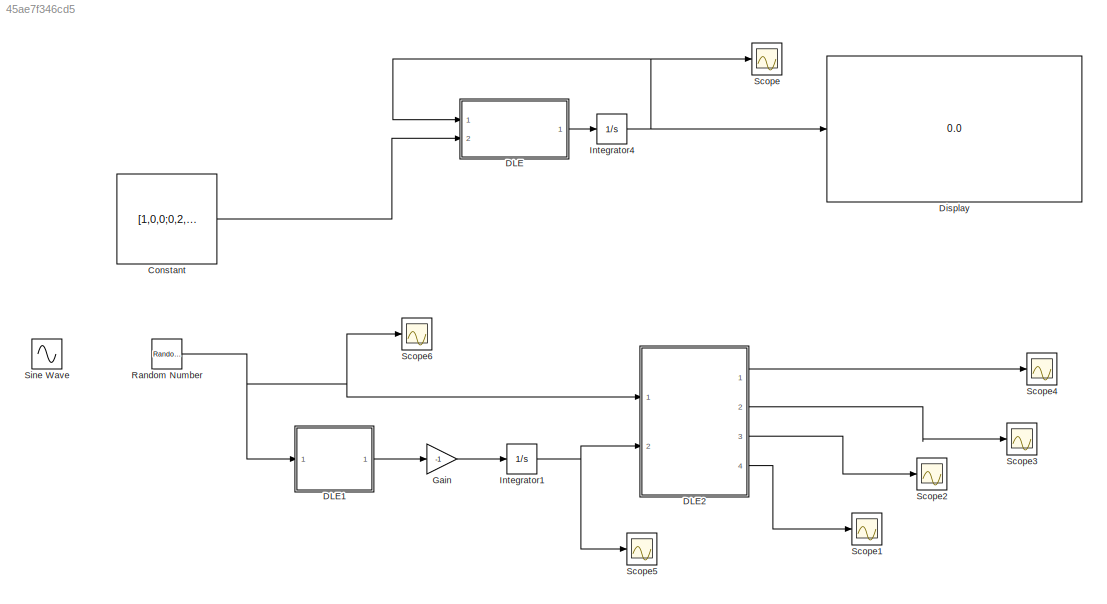
MODEL slx_45ae7f346cd5
KIND model
CONFIG AbsTol = auto
CONFIG EnableMultiTasking = off
CONFIG FixedStep = auto
CONFIG MaxStep = auto
CONFIG MinStep = auto
CONFIG RelTol = 1e-3
CONFIG SampleTimeConstraint = Unconstrained
CONFIG Solver = VariableStepAuto
CONFIG SolverName = VariableStepAuto
CONFIG StartTime = 0.0
CONFIG StopTime = 100
BLOCK [Constant] Constant
  Value = [1,0,0;0,2,0;0,0,3]
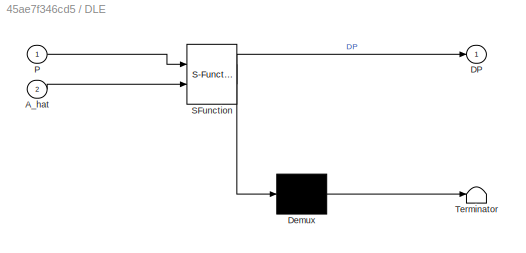
BLOCK [SubSystem] DLE
  ErrorFcn = Stateflow.Translate.translate
  PermitHierarchicalResolution = ExplicitOnly
  Ports = [2, 1]
  RequestExecContextInheritance = off
  SFBlockType = MATLAB Function
  TreatAsAtomicUnit = on
  Variant = off
BLOCK [Demux] DLE/ Demux 
  Outputs = 1
  Ports = [1, 1]
BLOCK [S-Function] DLE/ SFunction 
  EnableBusSupport = on
  FunctionName = sf_sfun
  PortCounts = [2 2]
  Ports = [2, 2]
  SFcnIsStateOwnerBlock = off
  SFunctionDeploymentMode = off
  Tag = Stateflow S-Function Test_DLE 13
BLOCK [Terminator] DLE/ Terminator 
BLOCK [Inport] DLE/A_hat
  IconDisplay = Port number
  Port = 2
BLOCK [Outport] DLE/DP
  IconDisplay = Port number
BLOCK [Inport] DLE/P
  IconDisplay = Port number
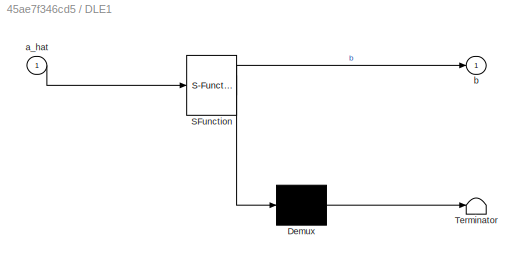
BLOCK [SubSystem] DLE1
  ErrorFcn = Stateflow.Translate.translate
  PermitHierarchicalResolution = ExplicitOnly
  Ports = [1, 1]
  RequestExecContextInheritance = off
  SFBlockType = MATLAB Function
  TreatAsAtomicUnit = on
  Variant = off
BLOCK [Demux] DLE1/ Demux 
  Outputs = 1
  Ports = [1, 1]
BLOCK [S-Function] DLE1/ SFunction 
  EnableBusSupport = on
  FunctionName = sf_sfun
  PortCounts = [1 2]
  Ports = [1, 2]
  SFcnIsStateOwnerBlock = off
  SFunctionDeploymentMode = off
  Tag = Stateflow S-Function Test_DLE 1
BLOCK [Terminator] DLE1/ Terminator 
BLOCK [Inport] DLE1/a_hat
  IconDisplay = Port number
BLOCK [Outport] DLE1/b
  IconDisplay = Port number
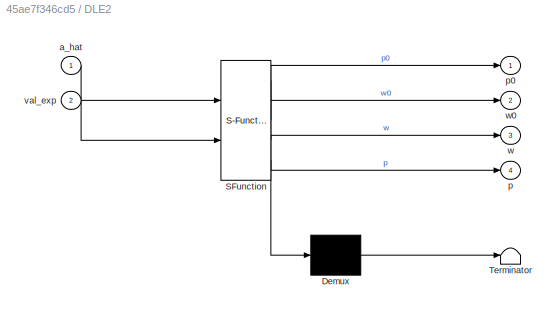
BLOCK [SubSystem] DLE2
  ErrorFcn = Stateflow.Translate.translate
  PermitHierarchicalResolution = ExplicitOnly
  Ports = [2, 4]
  RequestExecContextInheritance = off
  SFBlockType = MATLAB Function
  TreatAsAtomicUnit = on
  Variant = off
BLOCK [Demux] DLE2/ Demux 
  Outputs = 1
  Ports = [1, 1]
BLOCK [S-Function] DLE2/ SFunction 
  EnableBusSupport = on
  FunctionName = sf_sfun
  PortCounts = [2 5]
  Ports = [2, 5]
  SFcnIsStateOwnerBlock = off
  SFunctionDeploymentMode = off
  Tag = Stateflow S-Function Test_DLE 2
BLOCK [Terminator] DLE2/ Terminator 
BLOCK [Inport] DLE2/a_hat
  IconDisplay = Port number
BLOCK [Outport] DLE2/p
  IconDisplay = Port number
  Port = 4
BLOCK [Outport] DLE2/p0
  IconDisplay = Port number
BLOCK [Inport] DLE2/val_exp
  IconDisplay = Port number
  Port = 2
BLOCK [Outport] DLE2/w
  IconDisplay = Port number
  Port = 3
BLOCK [Outport] DLE2/w0
  IconDisplay = Port number
  Port = 2
BLOCK [Display] Display
  Decimation = 1
  Ports = [1]
BLOCK [Gain] Gain
  Gain = -1
  OutDataTypeStr = Inherit: Inherit via internal rule
  ParamDataTypeStr = Inherit: Inherit via internal rule
  SaturateOnIntegerOverflow = off
BLOCK [Integrator] Integrator1
  Ports = [1, 1]
BLOCK [Integrator] Integrator4
  InitialCondition = eye(3)
  Ports = [1, 1]
BLOCK [RandomNumber] Random Number
  SampleTime = 0.1
BLOCK [Scope] Scope
  NumInputPorts = 1
  Ports = [1]
  ScopeSpecificationString = Simulink.scopes.TimeScopeBlockCfg('CurrentConfiguration', extmgr.ConfigurationSet(extmgr.Configuration('Core','General UI',true),extmgr.Configuration('Core','Source UI',true),extmgr.Configuration('Sources','WiredSimulink',true),extmgr.Configuration('Visuals','Time Domain',true,'SerializedDisplays',{struct('MinYLimReal','-0.82029','MaxYLimReal','1.20225','YLabelReal','','MinYLimMag','0.00000','MaxY...<+1486ch>
BLOCK [Scope] Scope1
  NumInputPorts = 1
  Ports = [1]
  ScopeSpecificationString = Simulink.scopes.TimeScopeBlockCfg('CurrentConfiguration', extmgr.ConfigurationSet(extmgr.Configuration('Core','General UI',true),extmgr.Configuration('Core','Source UI',true),extmgr.Configuration('Sources','WiredSimulink',true,'DataLoggingVariableName','ScopeData1'),extmgr.Configuration('Visuals','Time Domain',true,'SerializedDisplays',{struct('MinYLimReal','-0.3414','MaxYLimReal','13.07259','YLab...<+1419ch>
BLOCK [Scope] Scope2
  NumInputPorts = 1
  Ports = [1]
  ScopeSpecificationString = Simulink.scopes.TimeScopeBlockCfg('CurrentConfiguration', extmgr.ConfigurationSet(extmgr.Configuration('Core','General UI',true),extmgr.Configuration('Core','Source UI',true),extmgr.Configuration('Sources','WiredSimulink',true,'DataLoggingVariableName','ScopeData2'),extmgr.Configuration('Visuals','Time Domain',true,'SerializedDisplays',{struct('MinYLimReal','0.04356','MaxYLimReal','0.10164','YLabe...<+1415ch>
BLOCK [Scope] Scope3
  NumInputPorts = 1
  Ports = [1]
  ScopeSpecificationString = Simulink.scopes.TimeScopeBlockCfg('CurrentConfiguration', extmgr.ConfigurationSet(extmgr.Configuration('Core','General UI',true),extmgr.Configuration('Core','Source UI',true),extmgr.Configuration('Sources','WiredSimulink',true,'DataLoggingVariableName','ScopeData3'),extmgr.Configuration('Visuals','Time Domain',true,'SerializedDisplays',{struct('MinYLimReal','0.07633','MaxYLimReal','0.10818','YLabe...<+1416ch>
BLOCK [Scope] Scope4
  NumInputPorts = 1
  Ports = [1]
  ScopeSpecificationString = Simulink.scopes.TimeScopeBlockCfg('CurrentConfiguration', extmgr.ConfigurationSet(extmgr.Configuration('Core','General UI',true),extmgr.Configuration('Core','Source UI',true),extmgr.Configuration('Sources','WiredSimulink',true,'DataLoggingVariableName','ScopeData4'),extmgr.Configuration('Visuals','Time Domain',true,'SerializedDisplays',{struct('MinYLimReal','-11.95797','MaxYLimReal','-8.14276','YL...<+1424ch>
BLOCK [Scope] Scope5
  NumInputPorts = 1
  Ports = [1]
  ScopeSpecificationString = Simulink.scopes.TimeScopeBlockCfg('CurrentConfiguration', extmgr.ConfigurationSet(extmgr.Configuration('Core','General UI',true),extmgr.Configuration('Core','Source UI',true),extmgr.Configuration('Sources','WiredSimulink',true,'DataLoggingVariableName','ScopeData5'),extmgr.Configuration('Visuals','Time Domain',true,'SerializedDisplays',{struct('MinYLimReal','-4505.96476','MaxYLimReal','500.66275',...<+1442ch>
BLOCK [Scope] Scope6
  NumInputPorts = 1
  Ports = [1]
  ScopeSpecificationString = Simulink.scopes.TimeScopeBlockCfg('CurrentConfiguration', extmgr.ConfigurationSet(extmgr.Configuration('Core','General UI',true),extmgr.Configuration('Core','Source UI',true),extmgr.Configuration('Sources','WiredSimulink',true,'DataLoggingVariableName','ScopeData6'),extmgr.Configuration('Visuals','Time Domain',true,'SerializedDisplays',{struct('MinYLimReal','-3.70636','MaxYLimReal','3.97505','YLab...<+1397ch>
BLOCK [Sin] Sine Wave
  Amplitude = 10
  Bias = -40
  Ports = [0, 1]
  SampleTime = 0
LINE Constant:1 -> DLE:2
LINE DLE1:1 -> Gain:1
LINE DLE2:1 -> Scope4:1
LINE DLE2:2 -> Scope3:1
LINE DLE2:3 -> Scope2:1
LINE DLE2:4 -> Scope1:1
LINE DLE:1 -> Integrator4:1
LINE Gain:1 -> Integrator1:1
NET Integrator1:1 -> DLE2:2, Scope5:1
NET Integrator4:1 -> DLE:1, Display:1, Scope:1
NET Random Number:1 -> DLE1:1, DLE2:1, Scope6:1
note: NET lines group one-source signal fan-out (src -> all destinations, sorted); 1:1 wires keep LINE
CHART DLE1 states=1 transitions=1
  STATE_LABEL 'eML_blk_kernel()'
  STATE_LABEL 'SCRIPT:\nfunction b = fcn(a_hat)\n\nh = 2;\nq = 1e2;\nDelta = (a_hat^2) + (2*q*h);\nb = 2*sqrt(Delta);\n\nend\n'
CHART DLE2 states=1 transitions=1
  STATE_LABEL 'eML_blk_kernel()'
  STATE_LABEL 'SCRIPT:\nfunction [p0,w0,w,p] = fcn(a_hat,val_exp)\n\nh = 2;\nq = 1e+2;\nDelta = (a_hat^2) + (2*q*h);\np_init = 1;\np0 = (1/h) * (a_hat - sqrt(Delta));\nw0 = 1 / (p_init - p0);\nb = 2*sqrt(Delta);\nw = (h/b) + (w0 - (h/b))*exp(val_exp);\np = p0 + (1/w);\n\nend\n'
CHART DLE states=1 transitions=1
  STATE_LABEL 'eML_blk_kernel()'
  STATE_LABEL "SCRIPT:\nfunction DP = fcn(P,A_hat)\n\nQ = 1.0e-0*eye(3);\nR = 1.0e+0*eye(3);\nh = 2;\nDP = - (A_hat*P + P*A_hat') - 2*Q + h*(P'*R*P);\n\nend\n"
